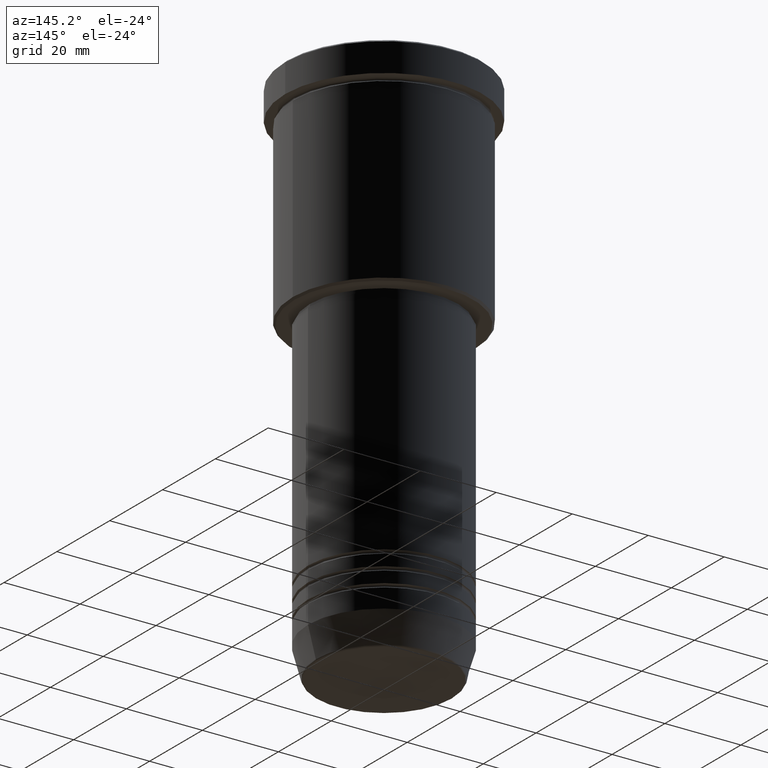
[diagram: clean part render]
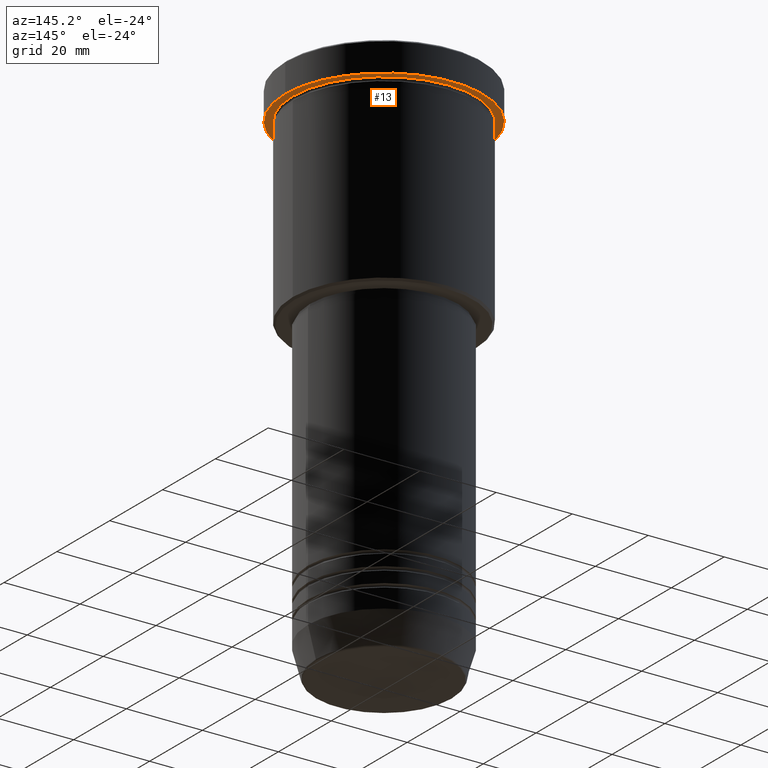
[diagram: same view with one face highlighted and labeled with its STEP entity id]
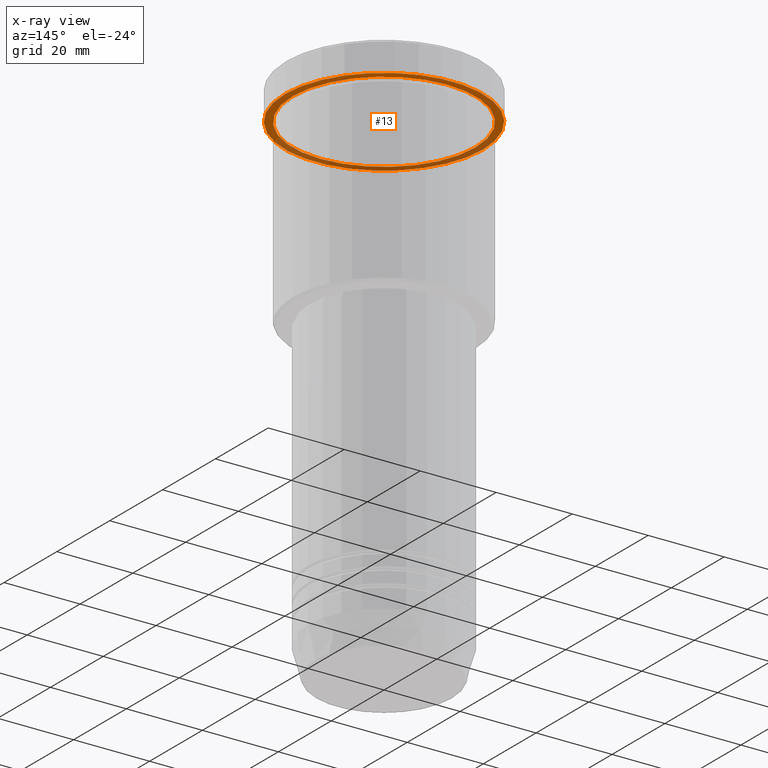
[diagram: x-ray of the same camera — body ghosted, the highlighted face saturated]
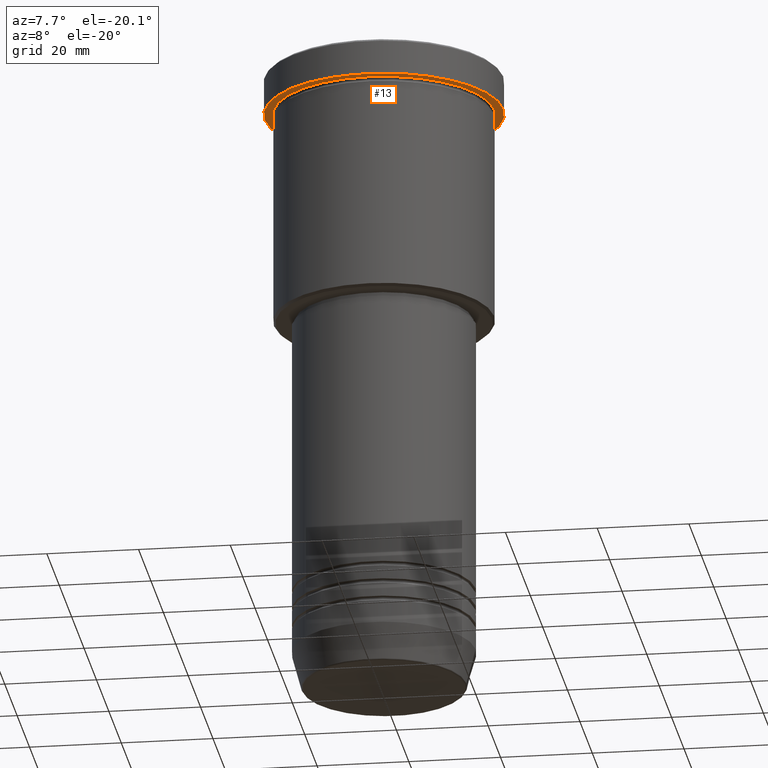
[diagram: same view with one face highlighted and labeled with its STEP entity id]
A machine part, auxiliary view. The second image highlights one B-rep face of the part: STEP entity #13.
The next image is the same camera in x-ray: the body ghosted, the highlighted face saturated — about 38% of this face is hidden behind the body in this view.
A second angle (auxiliary view) of the same face is appended — the face is thin or edge-on in the first view.
In plain terms, the highlighted planar face has unit normal (0, 0, -1).
Its self-contained STEP definition (entity closure, byte-faithful):
#13 = ADVANCED_FACE ( 'NONE', ( #350, #277 ), #743, .T. ) ;
#21 = DIRECTION ( 'NONE',  ( -0.000000000000000000, -0.000000000000000000, 1.000000000000000000 ) ) ;
#34 = CARTESIAN_POINT ( 'NONE',  ( 24.00000000000000000, 2.939152317953647894E-15, -7.999999999999992895 ) ) ;
#51 = DIRECTION ( 'NONE',  ( -1.000000000000000000, 0.000000000000000000, 0.000000000000000000 ) ) ;
#57 = CARTESIAN_POINT ( 'NONE',  ( 26.00000000000000000, 0.000000000000000000, -7.999999999999992895 ) ) ;
#69 = AXIS2_PLACEMENT_3D ( 'NONE', #1107, #567, #854 ) ;
#111 = DIRECTION ( 'NONE',  ( 0.000000000000000000, 0.000000000000000000, -1.000000000000000000 ) ) ;
#114 = DIRECTION ( 'NONE',  ( 1.000000000000000000, 0.000000000000000000, 0.000000000000000000 ) ) ;
#197 = CARTESIAN_POINT ( 'NONE',  ( -26.00000000000000000, 3.184081677783118191E-15, -7.999999999999992895 ) ) ;
#198 = EDGE_CURVE ( 'NONE', #521, #246, #439, .T. ) ;
#217 = DIRECTION ( 'NONE',  ( -0.000000000000000000, -0.000000000000000000, 1.000000000000000000 ) ) ;
#246 = VERTEX_POINT ( 'NONE', #261 ) ;
#249 = AXIS2_PLACEMENT_3D ( 'NONE', #747, #568, #938 ) ;
#261 = CARTESIAN_POINT ( 'NONE',  ( -24.00000000000000000, 0.000000000000000000, -7.999999999999992895 ) ) ;
#267 = DIRECTION ( 'NONE',  ( -1.000000000000000000, 0.000000000000000000, -0.000000000000000000 ) ) ;
#277 = FACE_OUTER_BOUND ( 'NONE', #728, .T. ) ;
#324 = CIRCLE ( 'NONE', #330, 26.00000000000000000 ) ;
#330 = AXIS2_PLACEMENT_3D ( 'NONE', #593, #217, #114 ) ;
#350 = FACE_BOUND ( 'NONE', #934, .T. ) ;
#380 = CIRCLE ( 'NONE', #69, 24.00000000000000000 ) ;
#395 = AXIS2_PLACEMENT_3D ( 'NONE', #1137, #21, #51 ) ;
#439 = CIRCLE ( 'NONE', #395, 24.00000000000000000 ) ;
#459 = CIRCLE ( 'NONE', #249, 26.00000000000000000 ) ;
#466 = EDGE_CURVE ( 'NONE', #246, #521, #380, .T. ) ;
#521 = VERTEX_POINT ( 'NONE', #34 ) ;
#567 = DIRECTION ( 'NONE',  ( -0.000000000000000000, -0.000000000000000000, 1.000000000000000000 ) ) ;
#568 = DIRECTION ( 'NONE',  ( -0.000000000000000000, -0.000000000000000000, 1.000000000000000000 ) ) ;
#593 = CARTESIAN_POINT ( 'NONE',  ( 0.000000000000000000, 0.000000000000000000, -7.999999999999992895 ) ) ;
#714 = VERTEX_POINT ( 'NONE', #197 ) ;
#728 = EDGE_LOOP ( 'NONE', ( #788, #882 ) ) ;
#743 = PLANE ( 'NONE',  #754 ) ;
#747 = CARTESIAN_POINT ( 'NONE',  ( 0.000000000000000000, 0.000000000000000000, -7.999999999999992895 ) ) ;
#754 = AXIS2_PLACEMENT_3D ( 'NONE', #1077, #111, #267 ) ;
#757 = EDGE_CURVE ( 'NONE', #1116, #714, #459, .T. ) ;
#788 = ORIENTED_EDGE ( 'NONE', *, *, #757, .F. ) ;
#797 = ORIENTED_EDGE ( 'NONE', *, *, #466, .T. ) ;
#854 = DIRECTION ( 'NONE',  ( -1.000000000000000000, 0.000000000000000000, 0.000000000000000000 ) ) ;
#877 = EDGE_CURVE ( 'NONE', #714, #1116, #324, .T. ) ;
#882 = ORIENTED_EDGE ( 'NONE', *, *, #877, .F. ) ;
#934 = EDGE_LOOP ( 'NONE', ( #797, #986 ) ) ;
#938 = DIRECTION ( 'NONE',  ( 1.000000000000000000, 0.000000000000000000, 0.000000000000000000 ) ) ;
#986 = ORIENTED_EDGE ( 'NONE', *, *, #198, .T. ) ;
#1077 = CARTESIAN_POINT ( 'NONE',  ( 0.000000000000000000, 26.00000000000000000, -7.999999999999992895 ) ) ;
#1107 = CARTESIAN_POINT ( 'NONE',  ( 0.000000000000000000, 0.000000000000000000, -7.999999999999992895 ) ) ;
#1116 = VERTEX_POINT ( 'NONE', #57 ) ;
#1137 = CARTESIAN_POINT ( 'NONE',  ( 0.000000000000000000, 0.000000000000000000, -7.999999999999992895 ) ) ;